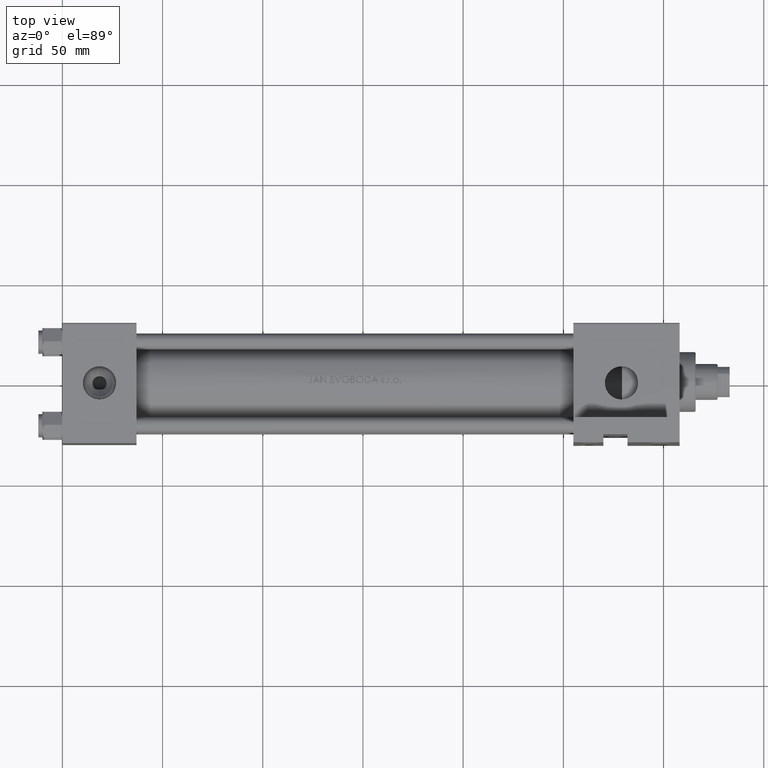
[diagram: clean part render]
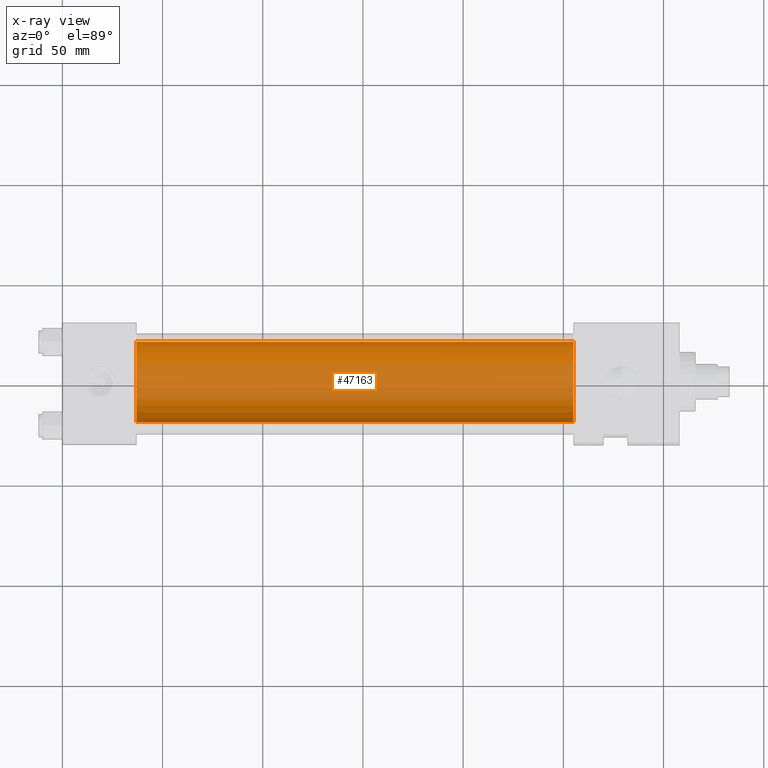
[diagram: x-ray — body ghosted, one internal face saturated and labeled with its STEP entity id]
A machine part, top view, then the same camera in x-ray: the body is ghosted and one INTERNAL B-rep face — a face not visible from any outside direction — is saturated and labeled: STEP entity #47163.
In plain terms, the highlighted cylindrical surface (partial cylindrical patch) has radius 20 mm, axis along (-1, -0, 0).
Its self-contained STEP definition (entity closure, byte-faithful):
#696 = CYLINDRICAL_SURFACE ( 'NONE', #28784, 20.00000000000000000 ) ;
#2428 = VERTEX_POINT ( 'NONE', #44005 ) ;
#2477 = DIRECTION ( 'NONE',  ( 0.000000000000000000, 0.000000000000000000, -1.000000000000000000 ) ) ;
#3187 = CARTESIAN_POINT ( 'NONE',  ( 37.00000000000000000, 2.326828918379970970E-15, -19.00000000000000000 ) ) ;
#3237 = VERTEX_POINT ( 'NONE', #10494 ) ;
#4335 = CIRCLE ( 'NONE', #41299, 20.00000000000000000 ) ;
#8106 = CARTESIAN_POINT ( 'NONE',  ( 255.0000000000000000, -1.224646799147354686E-16, 1.000000000000000888 ) ) ;
#8159 = CARTESIAN_POINT ( 'NONE',  ( 37.00000000000000000, -1.224646799147354686E-16, 1.000000000000000888 ) ) ;
#8619 = EDGE_CURVE ( 'NONE', #2428, #10225, #46053, .T. ) ;
#8737 = VERTEX_POINT ( 'NONE', #17047 ) ;
#9060 = EDGE_LOOP ( 'NONE', ( #14884, #20241, #13509, #23073 ) ) ;
#9388 = DIRECTION ( 'NONE',  ( 1.000000000000000000, 0.000000000000000000, 0.000000000000000000 ) ) ;
#10225 = VERTEX_POINT ( 'NONE', #3187 ) ;
#10494 = CARTESIAN_POINT ( 'NONE',  ( 37.00000000000000000, -1.224646799147354686E-16, 21.00000000000000000 ) ) ;
#13509 = ORIENTED_EDGE ( 'NONE', *, *, #35396, .T. ) ;
#14725 = EDGE_CURVE ( 'NONE', #10225, #3237, #44930, .T. ) ;
#14884 = ORIENTED_EDGE ( 'NONE', *, *, #8619, .F. ) ;
#15969 = DIRECTION ( 'NONE',  ( -1.000000000000000000, -0.000000000000000000, -0.000000000000000000 ) ) ;
#16504 = DIRECTION ( 'NONE',  ( 0.000000000000000000, 0.000000000000000000, -1.000000000000000000 ) ) ;
#16899 = CARTESIAN_POINT ( 'NONE',  ( 255.0000000000000000, -1.224646799147354686E-16, 21.00000000000000000 ) ) ;
#17047 = CARTESIAN_POINT ( 'NONE',  ( 255.0000000000000000, -1.224646799147354686E-16, 21.00000000000000000 ) ) ;
#19700 = DIRECTION ( 'NONE',  ( 1.000000000000000000, 0.000000000000000000, 0.000000000000000000 ) ) ;
#20241 = ORIENTED_EDGE ( 'NONE', *, *, #28535, .T. ) ;
#20823 = DIRECTION ( 'NONE',  ( -1.000000000000000000, -0.000000000000000000, -0.000000000000000000 ) ) ;
#23073 = ORIENTED_EDGE ( 'NONE', *, *, #14725, .F. ) ;
#24277 = DIRECTION ( 'NONE',  ( 0.000000000000000000, 0.000000000000000000, 1.000000000000000000 ) ) ;
#25140 = CARTESIAN_POINT ( 'NONE',  ( 255.0000000000000000, -1.224646799147354686E-16, 1.000000000000000888 ) ) ;
#28058 = VECTOR ( 'NONE', #20823, 1000.000000000000000 ) ;
#28535 = EDGE_CURVE ( 'NONE', #2428, #8737, #4335, .T. ) ;
#28784 = AXIS2_PLACEMENT_3D ( 'NONE', #8106, #15969, #24277 ) ;
#35396 = EDGE_CURVE ( 'NONE', #8737, #3237, #35636, .T. ) ;
#35437 = CARTESIAN_POINT ( 'NONE',  ( 255.0000000000000000, 2.326828918379970970E-15, -19.00000000000000000 ) ) ;
#35636 = LINE ( 'NONE', #16899, #28058 ) ;
#41299 = AXIS2_PLACEMENT_3D ( 'NONE', #25140, #9388, #2477 ) ;
#42096 = FACE_OUTER_BOUND ( 'NONE', #9060, .T. ) ;
#44005 = CARTESIAN_POINT ( 'NONE',  ( 255.0000000000000000, 2.326828918379970970E-15, -19.00000000000000000 ) ) ;
#44169 = AXIS2_PLACEMENT_3D ( 'NONE', #8159, #19700, #16504 ) ;
#44930 = CIRCLE ( 'NONE', #44169, 20.00000000000000000 ) ;
#45807 = DIRECTION ( 'NONE',  ( -1.000000000000000000, -0.000000000000000000, -0.000000000000000000 ) ) ;
#46053 = LINE ( 'NONE', #35437, #47866 ) ;
#47163 = ADVANCED_FACE ( 'NONE', ( #42096 ), #696, .F. ) ;
#47866 = VECTOR ( 'NONE', #45807, 1000.000000000000000 ) ;